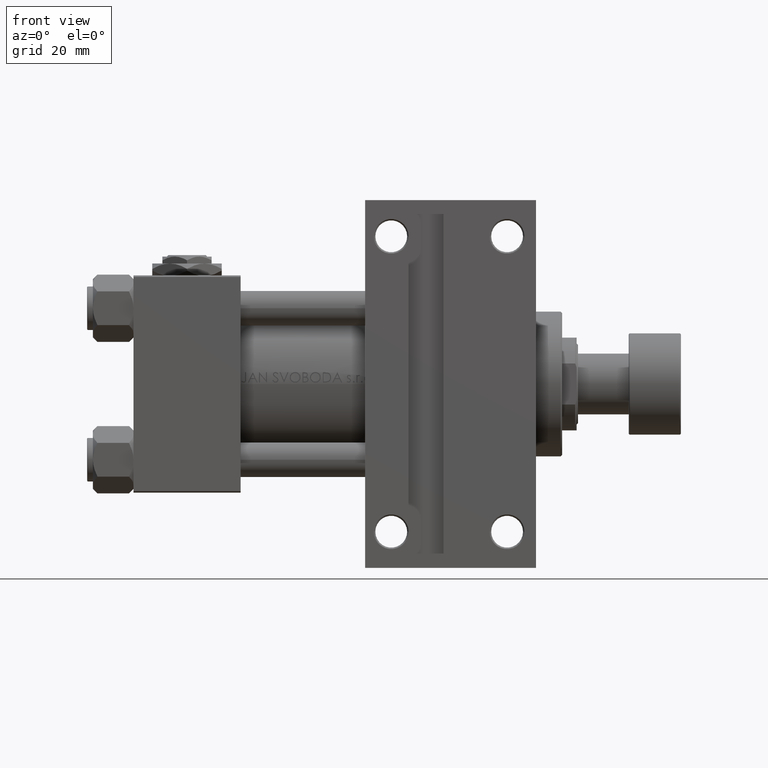
[diagram: clean part render]
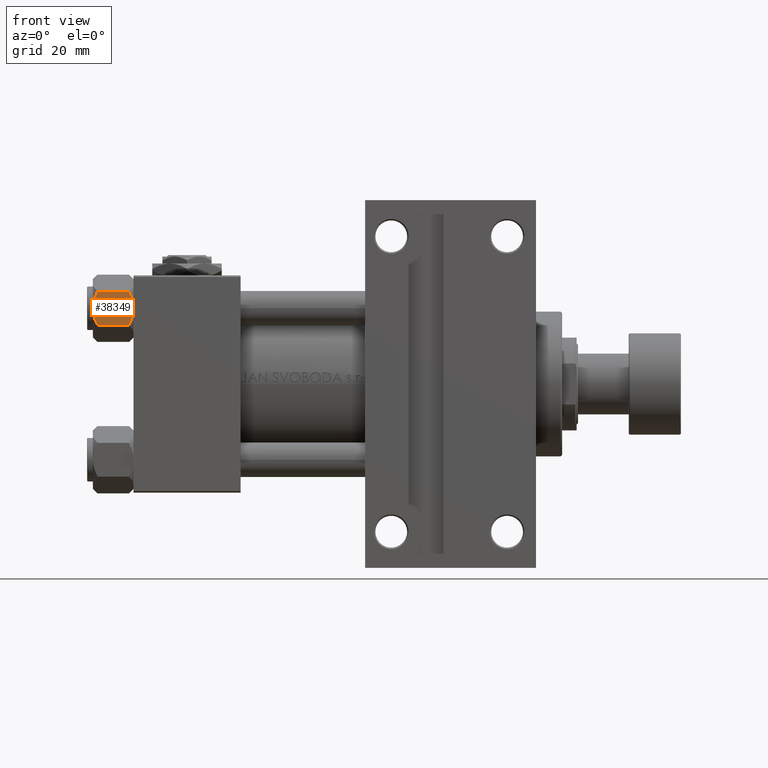
[diagram: same view with one face highlighted and labeled with its STEP entity id]
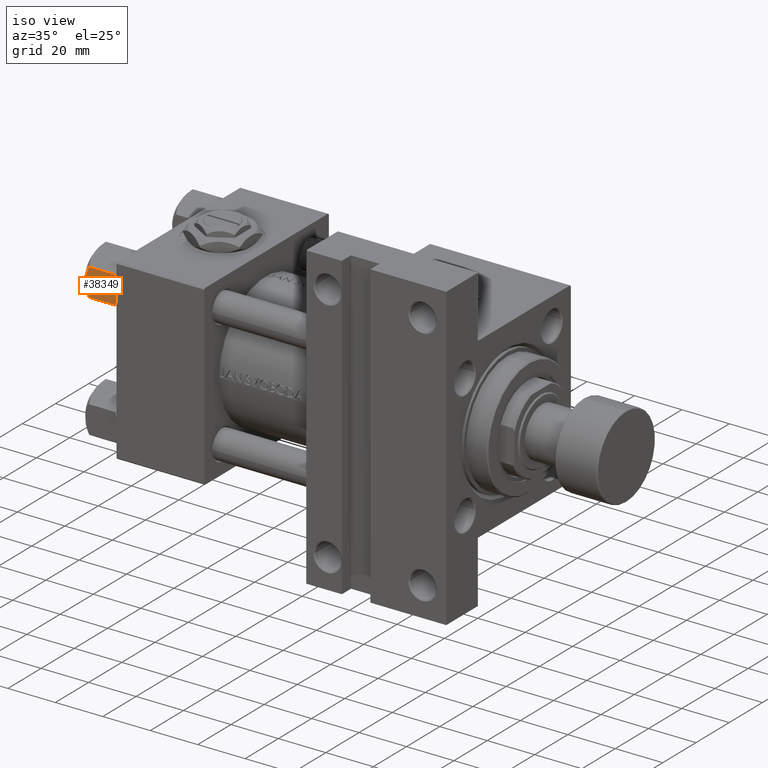
[diagram: same view with one face highlighted and labeled with its STEP entity id]
A machine part, front view. The second image highlights one B-rep face of the part: STEP entity #38349.
A second angle (iso view) of the same face is appended — the face is thin or edge-on in the first view.
In plain terms, the highlighted planar face has unit normal (0, 1, 0).
Its self-contained STEP definition (entity closure, byte-faithful):
#355 = CARTESIAN_POINT ( 'NONE',  ( 5.810000000000000497, 10.06321519197518022, -12.44321519197518455 ) ) ;
#1426 = CARTESIAN_POINT ( 'NONE',  ( -4.908816193182376608, 10.06321519197518199, -1.106192904616006167 ) ) ;
#2099 = VERTEX_POINT ( 'NONE', #3955 ) ;
#3370 = VERTEX_POINT ( 'NONE', #10597 ) ;
#3715 = CARTESIAN_POINT ( 'NONE',  ( -4.900668367960791194, 10.06321519197518199, -12.87844331629023387 ) ) ;
#3748 = B_SPLINE_CURVE_WITH_KNOTS ( 'NONE', 3,
 ( #46314, #49304, #45566, #15603, #30119, #27112, #37598, #38087 ),
 .UNSPECIFIED., .F., .F.,
 ( 4, 2, 2, 4 ),
 ( 0.01467889604968878811, 0.01619420351931634416, 0.01770951098894390369, 0.02074012592819901579 ),
 .UNSPECIFIED. ) ;
#3955 = CARTESIAN_POINT ( 'NONE',  ( 0.000000000000000000, 10.06321519197518022, 0.000000000000000000 ) ) ;
#4357 = CARTESIAN_POINT ( 'NONE',  ( 2.508586450168039939, 10.06321519197518022, -13.70242473679676998 ) ) ;
#4524 = AXIS2_PLACEMENT_3D ( 'NONE', #6565, #21276, #36540 ) ;
#6380 = EDGE_CURVE ( 'NONE', #39749, #44029, #49342, .T. ) ;
#6487 = VERTEX_POINT ( 'NONE', #21092 ) ;
#6565 = CARTESIAN_POINT ( 'NONE',  ( -5.809999999999997833, 10.06321519197518022, -14.00000000000000000 ) ) ;
#6720 = CARTESIAN_POINT ( 'NONE',  ( -3.958929922320415962, 10.06321519197517844, -13.25786014976460159 ) ) ;
#7195 = CARTESIAN_POINT ( 'NONE',  ( 0.000000000000000000, 10.06321519197518022, 0.000000000000000000 ) ) ;
#7840 = CARTESIAN_POINT ( 'NONE',  ( 1.018274738099085530, 10.06321519197517844, -13.95177257919929126 ) ) ;
#8618 = B_SPLINE_CURVE_WITH_KNOTS ( 'NONE', 3,
 ( #7195, #18418, #45133, #10919, #26175, #22415, #34416, #1426, #35164 ),
 .UNSPECIFIED., .F., .F.,
 ( 4, 2, 1, 2, 4 ),
 ( 0.02074012592819901579, 0.02149589804477577970, 0.02225167016135254361, 0.02376321439450607489, 0.02678630286081313400 ),
 .UNSPECIFIED. ) ;
#8824 = ORIENTED_EDGE ( 'NONE', *, *, #31422, .F. ) ;
#9388 = ORIENTED_EDGE ( 'NONE', *, *, #25434, .F. ) ;
#10597 = CARTESIAN_POINT ( 'NONE',  ( 0.000000000000000000, 10.06321519197518022, -14.00000000000000000 ) ) ;
#10919 = CARTESIAN_POINT ( 'NONE',  ( -1.018274738099083310, 10.06321519197517667, -0.04822742080070820114 ) ) ;
#11328 = CARTESIAN_POINT ( 'NONE',  ( 0.5112014849988890663, 10.06321519197518022, -13.99019602057108713 ) ) ;
#14012 = CARTESIAN_POINT ( 'NONE',  ( 5.810000000000000497, 10.06321519197518022, -12.44321519197518455 ) ) ;
#14692 = CARTESIAN_POINT ( 'NONE',  ( -1.020132157807624340, 10.06321519197517844, -14.00000000000000000 ) ) ;
#15603 = CARTESIAN_POINT ( 'NONE',  ( 3.958929922320420403, 10.06321519197517844, -0.7421398502353995230 ) ) ;
#17194 = ORIENTED_EDGE ( 'NONE', *, *, #19188, .F. ) ;
#17202 = VECTOR ( 'NONE', #34642, 1000.000000000000000 ) ;
#18418 = CARTESIAN_POINT ( 'NONE',  ( -0.2543996698847471039, 10.06321519197517844, 1.789568859311522647E-15 ) ) ;
#19188 = EDGE_CURVE ( 'NONE', #6487, #2099, #3748, .T. ) ;
#21064 = LINE ( 'NONE', #33332, #47639 ) ;
#21092 = CARTESIAN_POINT ( 'NONE',  ( 5.810000000000000497, 10.06321519197518022, -1.556784808024815892 ) ) ;
#21276 = DIRECTION ( 'NONE',  ( 0.000000000000000000, -1.000000000000000000, 0.000000000000000000 ) ) ;
#22016 = FACE_OUTER_BOUND ( 'NONE', #42438, .T. ) ;
#22415 = CARTESIAN_POINT ( 'NONE',  ( -2.508586450168038162, 10.06321519197518199, -0.2975752632032285794 ) ) ;
#23071 = CARTESIAN_POINT ( 'NONE',  ( 3.960942496020604331, 10.06321519197518022, -13.28842716763896092 ) ) ;
#25434 = EDGE_CURVE ( 'NONE', #39749, #3370, #44966, .T. ) ;
#26175 = CARTESIAN_POINT ( 'NONE',  ( -1.772424303831120929, 10.06321519197518022, -0.1338870921722370433 ) ) ;
#26191 = CARTESIAN_POINT ( 'NONE',  ( 0.000000000000000000, 10.06321519197518022, -14.00000000000000000 ) ) ;
#27112 = CARTESIAN_POINT ( 'NONE',  ( 2.013954290287966575, 10.06321519197518022, -0.1570111679759973733 ) ) ;
#30090 = CARTESIAN_POINT ( 'NONE',  ( 0.000000000000000000, 10.06321519197518022, -14.00000000000000000 ) ) ;
#30119 = CARTESIAN_POINT ( 'NONE',  ( 3.474497094393252272, 10.06321519197518022, -0.5726960901042741359 ) ) ;
#31422 = EDGE_CURVE ( 'NONE', #3370, #48016, #48701, .T. ) ;
#33332 = CARTESIAN_POINT ( 'NONE',  ( 5.810000000000000497, 10.06321519197518022, -14.00000000000000000 ) ) ;
#33575 = DIRECTION ( 'NONE',  ( -0.000000000000000000, -0.000000000000000000, 1.000000000000000000 ) ) ;
#33938 = CARTESIAN_POINT ( 'NONE',  ( -3.474497094393251828, 10.06321519197518022, -13.42730390989572520 ) ) ;
#33977 = CARTESIAN_POINT ( 'NONE',  ( -5.809999999999997833, 10.06321519197518022, -12.44321519197518633 ) ) ;
#34416 = CARTESIAN_POINT ( 'NONE',  ( -3.960942496020600778, 10.06321519197518199, -0.7115728323610410744 ) ) ;
#34642 = DIRECTION ( 'NONE',  ( -0.000000000000000000, -0.000000000000000000, 1.000000000000000000 ) ) ;
#35164 = CARTESIAN_POINT ( 'NONE',  ( -5.809999999999997833, 10.06321519197518022, -1.556784808024814115 ) ) ;
#36348 = ORIENTED_EDGE ( 'NONE', *, *, #44262, .F. ) ;
#36540 = DIRECTION ( 'NONE',  ( 0.000000000000000000, -0.000000000000000000, -1.000000000000000000 ) ) ;
#36944 = CARTESIAN_POINT ( 'NONE',  ( -2.013954290287964355, 10.06321519197518022, -13.84298883202399999 ) ) ;
#37598 = CARTESIAN_POINT ( 'NONE',  ( 1.020132157807626561, 10.06321519197517844, 1.504330514323637599E-15 ) ) ;
#38087 = CARTESIAN_POINT ( 'NONE',  ( 0.000000000000000000, 10.06321519197518022, 0.000000000000000000 ) ) ;
#38307 = CARTESIAN_POINT ( 'NONE',  ( 4.908816193182381937, 10.06321519197518022, -12.89380709538399472 ) ) ;
#38349 = ADVANCED_FACE ( 'NONE', ( #22016 ), #40761, .F. ) ;
#39749 = VERTEX_POINT ( 'NONE', #33977 ) ;
#40761 = PLANE ( 'NONE',  #4524 ) ;
#41410 = CARTESIAN_POINT ( 'NONE',  ( -5.359707691559671083, 10.06321519197517844, -12.66836134619534704 ) ) ;
#41793 = CARTESIAN_POINT ( 'NONE',  ( 0.2543996698847490467, 10.06321519197518199, -14.00000000000000000 ) ) ;
#42119 = CARTESIAN_POINT ( 'NONE',  ( -5.809999999999997833, 10.06321519197518022, -14.00000000000000000 ) ) ;
#42438 = EDGE_LOOP ( 'NONE', ( #9388, #46826, #45409, #17194, #36348, #8824 ) ) ;
#42584 = CARTESIAN_POINT ( 'NONE',  ( -5.809999999999997833, 10.06321519197518022, -1.556784808024814115 ) ) ;
#44029 = VERTEX_POINT ( 'NONE', #42584 ) ;
#44262 = EDGE_CURVE ( 'NONE', #48016, #6487, #21064, .T. ) ;
#44966 = B_SPLINE_CURVE_WITH_KNOTS ( 'NONE', 3,
 ( #48640, #41410, #3715, #6720, #33938, #36944, #14692, #26191 ),
 .UNSPECIFIED., .F., .F.,
 ( 4, 2, 2, 4 ),
 ( 0.01467889604968878464, 0.01619420351931634416, 0.01770951098894390022, 0.02074012592819901579 ),
 .UNSPECIFIED. ) ;
#45041 = CARTESIAN_POINT ( 'NONE',  ( 1.772424303831123815, 10.06321519197518199, -13.86611290782776074 ) ) ;
#45133 = CARTESIAN_POINT ( 'NONE',  ( -0.5112014849988875120, 10.06321519197518199, -0.009803979428912690947 ) ) ;
#45409 = ORIENTED_EDGE ( 'NONE', *, *, #47291, .F. ) ;
#45566 = CARTESIAN_POINT ( 'NONE',  ( 4.900668367960795635, 10.06321519197518199, -1.121556683709773239 ) ) ;
#46314 = CARTESIAN_POINT ( 'NONE',  ( 5.810000000000000497, 10.06321519197518022, -1.556784808024815892 ) ) ;
#46826 = ORIENTED_EDGE ( 'NONE', *, *, #6380, .T. ) ;
#47291 = EDGE_CURVE ( 'NONE', #2099, #44029, #8618, .T. ) ;
#47639 = VECTOR ( 'NONE', #33575, 1000.000000000000000 ) ;
#48016 = VERTEX_POINT ( 'NONE', #14012 ) ;
#48640 = CARTESIAN_POINT ( 'NONE',  ( -5.809999999999997833, 10.06321519197518022, -12.44321519197518633 ) ) ;
#48701 = B_SPLINE_CURVE_WITH_KNOTS ( 'NONE', 3,
 ( #30090, #41793, #11328, #7840, #45041, #4357, #23071, #38307, #355 ),
 .UNSPECIFIED., .F., .F.,
 ( 4, 2, 1, 2, 4 ),
 ( 0.02074012592819901579, 0.02149589804477577970, 0.02225167016135254361, 0.02376321439450607489, 0.02678630286081313400 ),
 .UNSPECIFIED. ) ;
#49304 = CARTESIAN_POINT ( 'NONE',  ( 5.359707691559672860, 10.06321519197517844, -1.331638653804651629 ) ) ;
#49342 = LINE ( 'NONE', #42119, #17202 ) ;